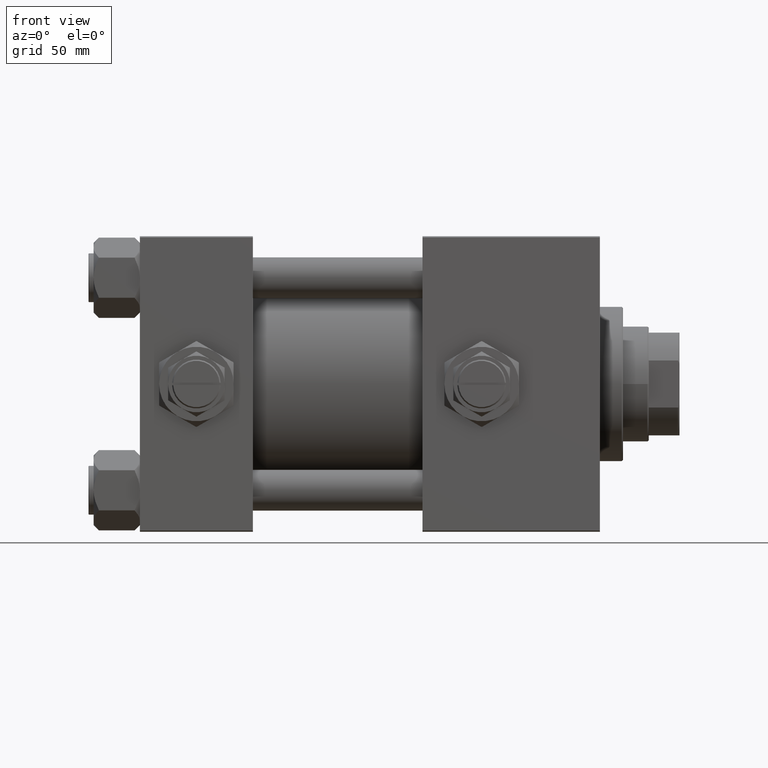
[diagram: clean part render]
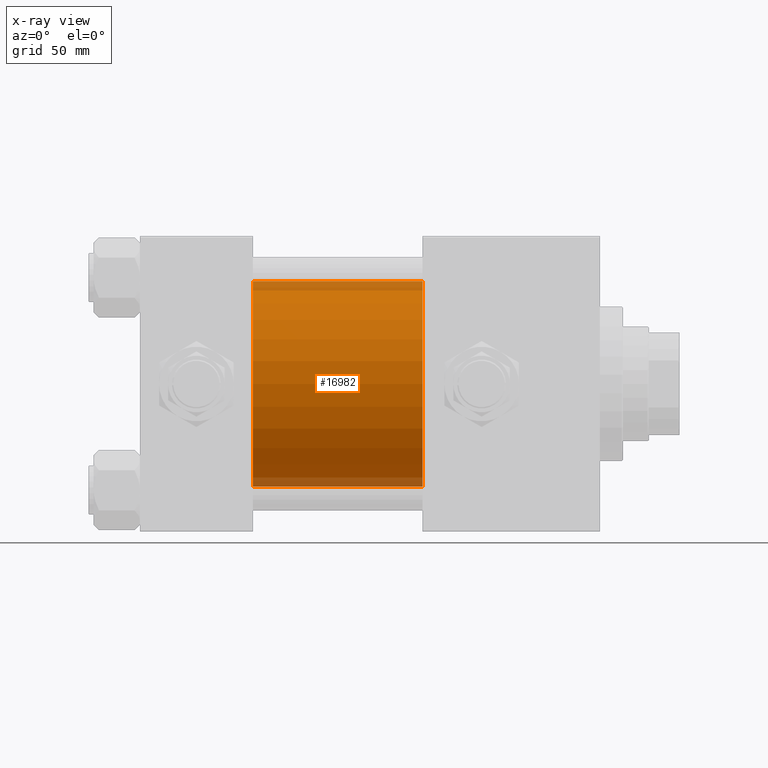
[diagram: x-ray — body ghosted, one internal face saturated and labeled with its STEP entity id]
A machine part, front view, then the same camera in x-ray: the body is ghosted and one INTERNAL B-rep face — a face not visible from any outside direction — is saturated and labeled: STEP entity #16982.
In plain terms, the highlighted cylindrical surface (partial cylindrical patch) has radius 40 mm, axis along (-1, -0, -0).
Its self-contained STEP definition (entity closure, byte-faithful):
#2690 = DIRECTION ( 'NONE',  ( 0.000000000000000000, 0.000000000000000000, -1.000000000000000000 ) ) ;
#3782 = CARTESIAN_POINT ( 'NONE',  ( 110.0000000000000000, -2.602085213965210642E-15, 0.000000000000000000 ) ) ;
#5513 = DIRECTION ( 'NONE',  ( 1.000000000000000000, 0.000000000000000000, 0.000000000000000000 ) ) ;
#5606 = CARTESIAN_POINT ( 'NONE',  ( 44.00000000000000000, -2.602085213965210642E-15, 40.00000000000000000 ) ) ;
#6406 = CIRCLE ( 'NONE', #30324, 40.00000000000000000 ) ;
#7705 = CARTESIAN_POINT ( 'NONE',  ( 110.0000000000000000, 2.296501982624201990E-15, -40.00000000000000000 ) ) ;
#7779 = FACE_OUTER_BOUND ( 'NONE', #24875, .T. ) ;
#9623 = CARTESIAN_POINT ( 'NONE',  ( 110.0000000000000000, 2.296501982624201990E-15, -40.00000000000000000 ) ) ;
#10955 = ORIENTED_EDGE ( 'NONE', *, *, #34956, .F. ) ;
#11833 = ORIENTED_EDGE ( 'NONE', *, *, #36306, .T. ) ;
#11933 = EDGE_CURVE ( 'NONE', #33897, #17182, #49882, .T. ) ;
#13276 = DIRECTION ( 'NONE',  ( 0.000000000000000000, 0.000000000000000000, -1.000000000000000000 ) ) ;
#13802 = EDGE_CURVE ( 'NONE', #36205, #35130, #6406, .T. ) ;
#16072 = DIRECTION ( 'NONE',  ( -1.000000000000000000, -0.000000000000000000, -0.000000000000000000 ) ) ;
#16982 = ADVANCED_FACE ( 'NONE', ( #7779 ), #40397, .F. ) ;
#17182 = VERTEX_POINT ( 'NONE', #9623 ) ;
#18744 = VECTOR ( 'NONE', #47793, 1000.000000000000000 ) ;
#22184 = CARTESIAN_POINT ( 'NONE',  ( 110.0000000000000000, -2.602085213965210642E-15, 40.00000000000000000 ) ) ;
#23004 = DIRECTION ( 'NONE',  ( 0.000000000000000000, 0.000000000000000000, 1.000000000000000000 ) ) ;
#24875 = EDGE_LOOP ( 'NONE', ( #33909, #11833, #26039, #10955 ) ) ;
#26039 = ORIENTED_EDGE ( 'NONE', *, *, #13802, .F. ) ;
#26211 = LINE ( 'NONE', #22184, #35918 ) ;
#26461 = CARTESIAN_POINT ( 'NONE',  ( 44.00000000000000000, 2.296501982624201990E-15, -40.00000000000000000 ) ) ;
#30324 = AXIS2_PLACEMENT_3D ( 'NONE', #42515, #38772, #2690 ) ;
#33897 = VERTEX_POINT ( 'NONE', #48420 ) ;
#33909 = ORIENTED_EDGE ( 'NONE', *, *, #11933, .T. ) ;
#34956 = EDGE_CURVE ( 'NONE', #33897, #36205, #26211, .T. ) ;
#35130 = VERTEX_POINT ( 'NONE', #26461 ) ;
#35918 = VECTOR ( 'NONE', #43556, 1000.000000000000000 ) ;
#36205 = VERTEX_POINT ( 'NONE', #5606 ) ;
#36306 = EDGE_CURVE ( 'NONE', #17182, #35130, #44324, .T. ) ;
#38772 = DIRECTION ( 'NONE',  ( 1.000000000000000000, 0.000000000000000000, 0.000000000000000000 ) ) ;
#40397 = CYLINDRICAL_SURFACE ( 'NONE', #40567, 40.00000000000000000 ) ;
#40567 = AXIS2_PLACEMENT_3D ( 'NONE', #3782, #16072, #23004 ) ;
#42515 = CARTESIAN_POINT ( 'NONE',  ( 44.00000000000000000, -2.602085213965210642E-15, 0.000000000000000000 ) ) ;
#43556 = DIRECTION ( 'NONE',  ( -1.000000000000000000, -0.000000000000000000, -0.000000000000000000 ) ) ;
#44324 = LINE ( 'NONE', #7705, #18744 ) ;
#46132 = CARTESIAN_POINT ( 'NONE',  ( 110.0000000000000000, -2.602085213965210642E-15, 0.000000000000000000 ) ) ;
#47793 = DIRECTION ( 'NONE',  ( -1.000000000000000000, -0.000000000000000000, -0.000000000000000000 ) ) ;
#48420 = CARTESIAN_POINT ( 'NONE',  ( 110.0000000000000000, -2.602085213965210642E-15, 40.00000000000000000 ) ) ;
#49882 = CIRCLE ( 'NONE', #52434, 40.00000000000000000 ) ;
#52434 = AXIS2_PLACEMENT_3D ( 'NONE', #46132, #5513, #13276 ) ;